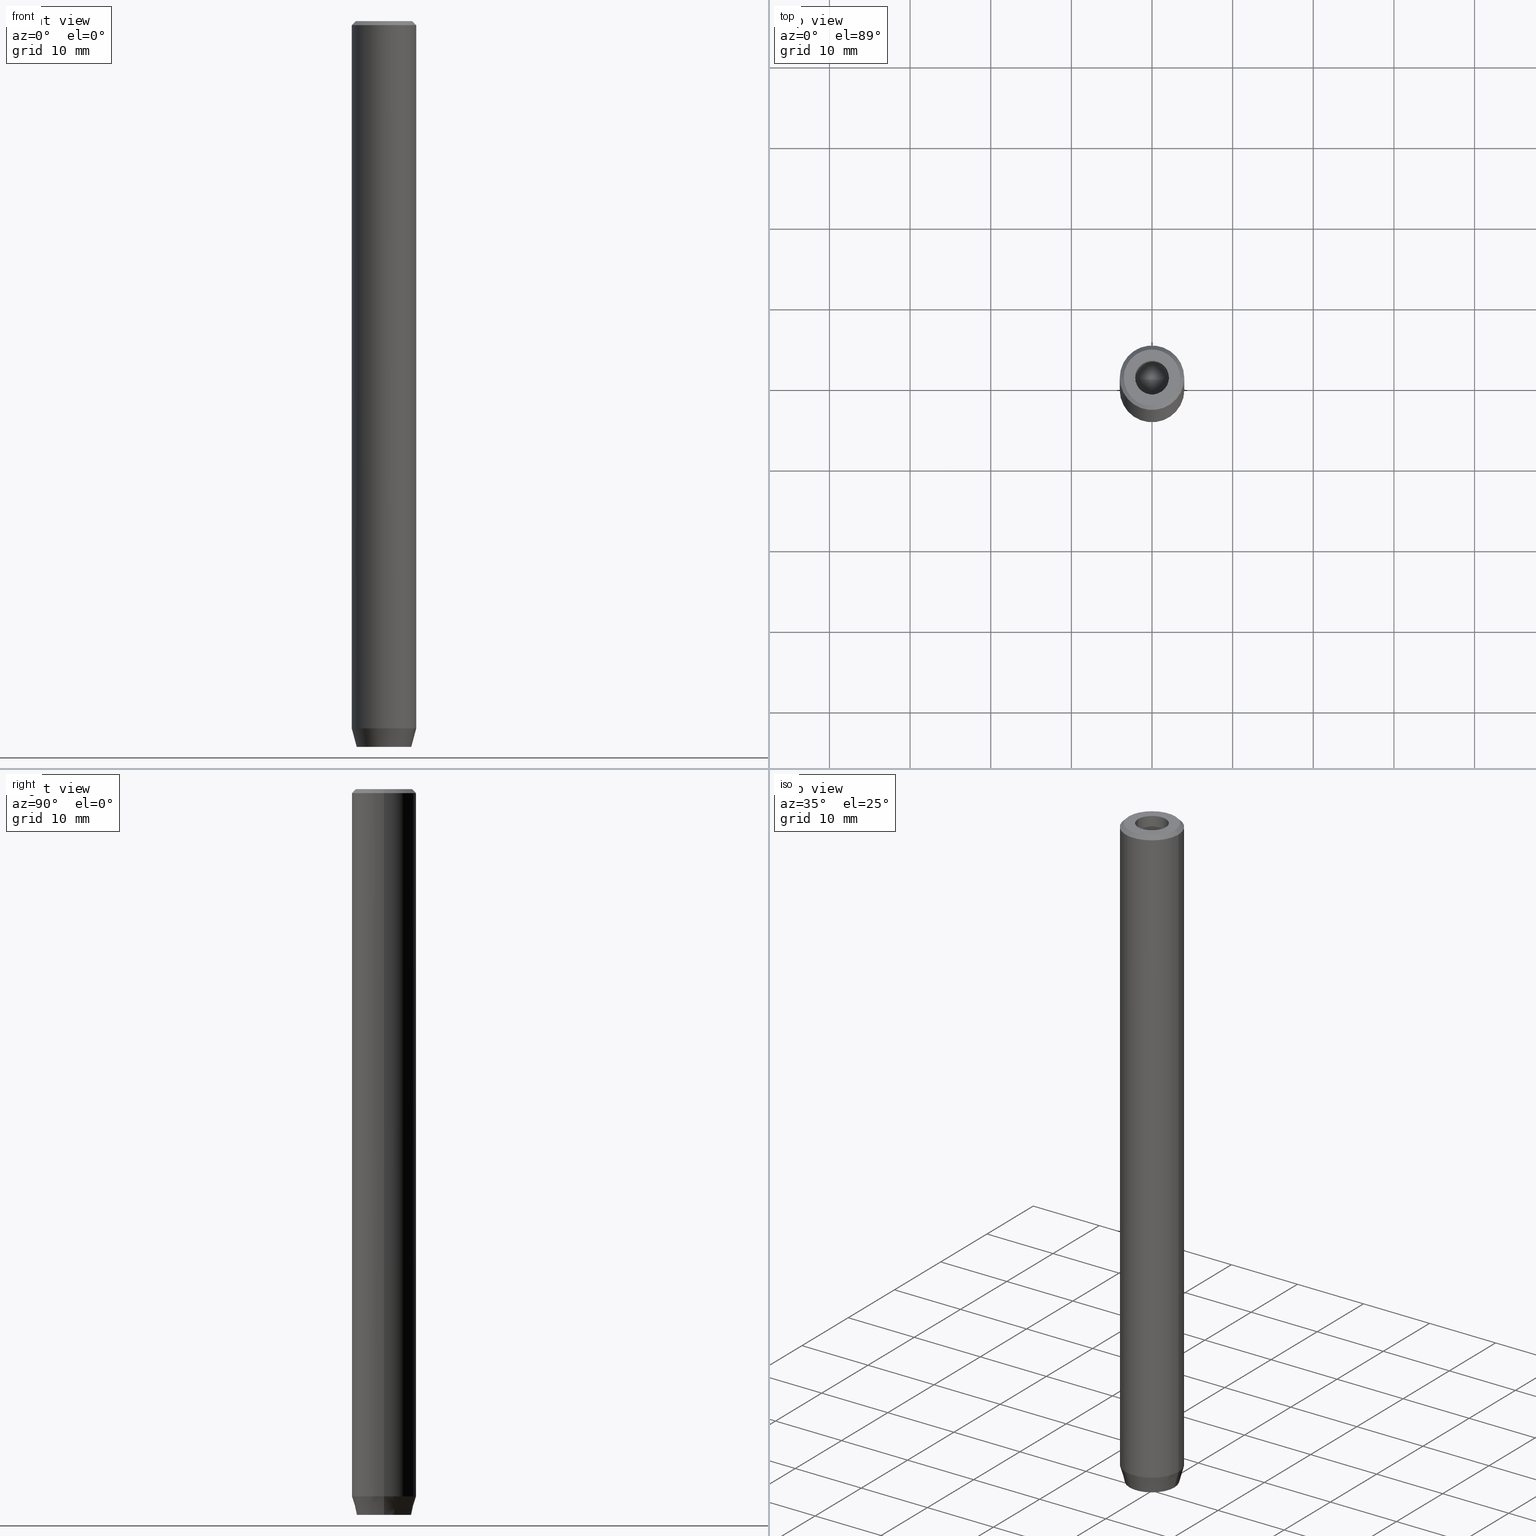
[diagram: canonical four-view strip — front | top / right | iso, engineering-drawing reading convention]
A machine part, canonical four-view strip (front | top / right | iso — engineering-drawing reading convention). The complete STEP part file that produces these views, byte-faithful:
ISO-10303-21;
HEADER;
FILE_DESCRIPTION (( 'STEP AP203' ),
    '1' );
FILE_NAME ('450a.STEP',
    '2024-01-02T23:08:34',
    ( '' ),
    ( '' ),
    'SwSTEP 2.0',
    'SolidWorks 2019',
    '' );
FILE_SCHEMA (( 'CONFIG_CONTROL_DESIGN' ));
ENDSEC;

DATA;
#1 = DIRECTION ( 'NONE',  ( -0.000000000000000000, -0.000000000000000000, 1.000000000000000000 ) ) ;
#2 = DIRECTION ( 'NONE',  ( -0.000000000000000000, -0.000000000000000000, 1.000000000000000000 ) ) ;
#3 = VECTOR ( 'NONE', #38, 1000.000000000000000 ) ;
#4 = EDGE_CURVE ( 'NONE', #305, #62, #400, .T. ) ;
#5 = DIRECTION ( 'NONE',  ( 1.000000000000000000, 0.000000000000000000, 0.000000000000000000 ) ) ;
#6 = LINE ( 'NONE', #286, #94 ) ;
#7 = CARTESIAN_POINT ( 'NONE',  ( -2.099999999999997868, 2.571758278209438999E-16, 0.000000000000000000 ) ) ;
#8 = ORIENTED_EDGE ( 'NONE', *, *, #4, .T. ) ;
#9 = EDGE_CURVE ( 'NONE', #29, #391, #340, .T. ) ;
#10 = CIRCLE ( 'NONE', #161, 4.000000000000000000 ) ;
#11 = CARTESIAN_POINT ( 'NONE',  ( -1.000000000000000222, -1.732050807568877637, -87.20000000000000284 ) ) ;
#12 = DIRECTION ( 'NONE',  ( -1.000000000000000000, 0.000000000000000000, 0.000000000000000000 ) ) ;
#13 = ORIENTED_EDGE ( 'NONE', *, *, #137, .T. ) ;
#14 = VERTEX_POINT ( 'NONE', #252 ) ;
#15 = APPROVAL ( #52, 'NEUR�EN�' ) ;
#16 = CARTESIAN_POINT ( 'NONE',  ( -2.099999999999998757, 2.571758278209439985E-16, -1.990051048614449116E-16 ) ) ;
#17 = ORIENTED_EDGE ( 'NONE', *, *, #27, .T. ) ;
#18 = ORIENTED_EDGE ( 'NONE', *, *, #323, .F. ) ;
#19 = LINE ( 'NONE', #11, #106 ) ;
#20 = CARTESIAN_POINT ( 'NONE',  ( -1.999999999999998668, -1.154700538379252572, -87.20000000000000284 ) ) ;
#21 = EDGE_LOOP ( 'NONE', ( #22, #513, #307, #389 ) ) ;
#22 = ORIENTED_EDGE ( 'NONE', *, *, #559, .F. ) ;
#23 = DATE_TIME_ROLE ( 'creation_date' ) ;
#24 = AXIS2_PLACEMENT_3D ( 'NONE', #134, #2, #85 ) ;
#25 = LOCAL_TIME ( 0, 8, 34.00000000000000000, #192 ) ;
#26 = LINE ( 'NONE', #152, #179 ) ;
#27 = EDGE_CURVE ( 'NONE', #14, #105, #512, .T. ) ;
#28 = ORIENTED_EDGE ( 'NONE', *, *, #583, .T. ) ;
#29 = VERTEX_POINT ( 'NONE', #572 ) ;
#30 = PRODUCT_DEFINITION_SHAPE ( 'NONE', 'NONE',  #507 ) ;
#31 = ORIENTED_EDGE ( 'NONE', *, *, #9, .F. ) ;
#32 = DIRECTION ( 'NONE',  ( 1.000000000000000000, 0.000000000000000000, 0.000000000000000000 ) ) ;
#33 = EDGE_LOOP ( 'NONE', ( #353, #79, #533, #397 ) ) ;
#34 = CC_DESIGN_DATE_AND_TIME_ASSIGNMENT ( #496, #23, ( #507 ) ) ;
#35 = CONICAL_SURFACE ( 'NONE', #318, 2.099999999999996980, 1.029744258676653201 ) ;
#36 = APPROVAL_PERSON_ORGANIZATION ( #348, #282, #534 ) ;
#37 = EDGE_LOOP ( 'NONE', ( #440, #109, #517, #220 ) ) ;
#38 = DIRECTION ( 'NONE',  ( -0.000000000000000000, -0.000000000000000000, -1.000000000000000000 ) ) ;
#39 = EDGE_CURVE ( 'NONE', #122, #66, #262, .T. ) ;
#40 = ORIENTED_EDGE ( 'NONE', *, *, #184, .F. ) ;
#41 = CYLINDRICAL_SURFACE ( 'NONE', #58, 4.000000000000000000 ) ;
#42 = CARTESIAN_POINT ( 'NONE',  ( -4.000000000000000000, 4.898587196589412829E-16, -0.4999999999999970024 ) ) ;
#43 = CC_DESIGN_APPROVAL ( #282, ( #451 ) ) ;
#44 = VERTEX_POINT ( 'NONE', #536 ) ;
#45 = DIRECTION ( 'NONE',  ( 1.000000000000000000, 0.000000000000000000, 0.000000000000000000 ) ) ;
#46 = CALENDAR_DATE ( 2024, 3, 1 ) ;
#47 = CARTESIAN_POINT ( 'NONE',  ( 2.168404344971008868E-16, -2.309401076758503812, -90.00000000000000000 ) ) ;
#48 = EDGE_CURVE ( 'NONE', #399, #531, #370, .T. ) ;
#49 = DIRECTION ( 'NONE',  ( 0.8660254037844385966, 0.5000000000000001110, 0.000000000000000000 ) ) ;
#50 = VECTOR ( 'NONE', #476, 1000.000000000000000 ) ;
#51 = DIRECTION ( 'NONE',  ( 1.000000000000000000, 0.000000000000000000, 0.000000000000000000 ) ) ;
#52 = APPROVAL_STATUS ( 'not_yet_approved' ) ;
#53 = CARTESIAN_POINT ( 'NONE',  ( -1.000000000000000222, -1.732050807568877637, -90.00000000000000000 ) ) ;
#54 = EDGE_CURVE ( 'NONE', #105, #44, #321, .T. ) ;
#55 = PLANE ( 'NONE',  #582 ) ;
#56 = FACE_OUTER_BOUND ( 'NONE', #254, .T. ) ;
#57 = ORIENTED_EDGE ( 'NONE', *, *, #350, .T. ) ;
#58 = AXIS2_PLACEMENT_3D ( 'NONE', #90, #358, #280 ) ;
#59 = CARTESIAN_POINT ( 'NONE',  ( -3.500000000000003109, 0.000000000000000000, 0.000000000000000000 ) ) ;
#60 = ORIENTED_EDGE ( 'NONE', *, *, #228, .T. ) ;
#61 = FACE_BOUND ( 'NONE', #244, .T. ) ;
#62 = VERTEX_POINT ( 'NONE', #275 ) ;
#63 = ADVANCED_FACE ( 'NONE', ( #548 ), #380, .F. ) ;
#64 = LINE ( 'NONE', #295, #371 ) ;
#65 = DIRECTION ( 'NONE',  ( 0.000000000000000000, 0.000000000000000000, -1.000000000000000000 ) ) ;
#66 = VERTEX_POINT ( 'NONE', #413 ) ;
#67 = LINE ( 'NONE', #570, #264 ) ;
#68 = VECTOR ( 'NONE', #313, 1000.000000000000000 ) ;
#69 = CARTESIAN_POINT ( 'NONE',  ( 0.000000000000000000, 0.000000000000000000, -90.00000000000000000 ) ) ;
#70 = LINE ( 'NONE', #258, #546 ) ;
#71 = ADVANCED_FACE ( 'NONE', ( #195 ), #367, .F. ) ;
#72 = ORIENTED_EDGE ( 'NONE', *, *, #120, .F. ) ;
#73 = DIRECTION ( 'NONE',  ( -0.000000000000000000, -0.000000000000000000, -1.000000000000000000 ) ) ;
#74 = ORIENTED_EDGE ( 'NONE', *, *, #243, .T. ) ;
#75 = DIRECTION ( 'NONE',  ( 0.8660254037844385966, -0.4999999999999999445, 0.000000000000000000 ) ) ;
#76 = CIRCLE ( 'NONE', #310, 3.500000000000003109 ) ;
#77 = CARTESIAN_POINT ( 'NONE',  ( 0.000000000000000000, 0.000000000000000000, 0.000000000000000000 ) ) ;
#78 = APPROVAL ( #300, 'NEUR�EN�' ) ;
#79 = ORIENTED_EDGE ( 'NONE', *, *, #414, .F. ) ;
#80 = PERSON_AND_ORGANIZATION ( #141, #226 ) ;
#81 = LINE ( 'NONE', #193, #419 ) ;
#82 = LINE ( 'NONE', #271, #408 ) ;
#83 = EDGE_LOOP ( 'NONE', ( #183, #115, #111, #74 ) ) ;
#84 = CARTESIAN_POINT ( 'NONE',  ( 1.000000000000000444, 1.732050807568877637, -87.20000000000000284 ) ) ;
#85 = DIRECTION ( 'NONE',  ( 1.000000000000000000, 0.000000000000000000, 0.000000000000000000 ) ) ;
#86 = VECTOR ( 'NONE', #190, 1000.000000000000000 ) ;
#87 = VECTOR ( 'NONE', #547, 1000.000000000000000 ) ;
#88 =( NAMED_UNIT ( * ) PLANE_ANGLE_UNIT ( ) SI_UNIT ( $, .RADIAN. ) );
#89 = EDGE_CURVE ( 'NONE', #62, #399, #82, .T. ) ;
#90 = CARTESIAN_POINT ( 'NONE',  ( 0.000000000000000000, 0.000000000000000000, 0.000000000000000000 ) ) ;
#91 = VERTEX_POINT ( 'NONE', #42 ) ;
#92 = PRODUCT_RELATED_PRODUCT_CATEGORY ( 'detail', '', ( #124 ) ) ;
#93 = PLANE ( 'NONE',  #575 ) ;
#94 = VECTOR ( 'NONE', #339, 1000.000000000000000 ) ;
#95 = LOCAL_TIME ( 0, 8, 34.00000000000000000, #125 ) ;
#96 = ADVANCED_FACE ( 'NONE', ( #227 ), #35, .F. ) ;
#97 = DIRECTION ( 'NONE',  ( 0.000000000000000000, 0.000000000000000000, -1.000000000000000000 ) ) ;
#98 = DIRECTION ( 'NONE',  ( -0.8660254037844388186, -0.4999999999999996114, 0.000000000000000000 ) ) ;
#99 = CARTESIAN_POINT ( 'NONE',  ( 2.099999999999996980, 0.000000000000000000, -12.50000000000000000 ) ) ;
#100 = LINE ( 'NONE', #427, #50 ) ;
#101 = DIRECTION ( 'NONE',  ( 1.000000000000000000, 0.000000000000000000, 0.000000000000000000 ) ) ;
#102 = ORIENTED_EDGE ( 'NONE', *, *, #243, .F. ) ;
#103 = DIRECTION ( 'NONE',  ( -0.000000000000000000, -0.000000000000000000, -1.000000000000000000 ) ) ;
#104 = CARTESIAN_POINT ( 'NONE',  ( -3.500000000000003109, 0.000000000000000000, 0.000000000000000000 ) ) ;
#105 = VERTEX_POINT ( 'NONE', #543 ) ;
#106 = VECTOR ( 'NONE', #374, 999.9999999999998863 ) ;
#107 = CARTESIAN_POINT ( 'NONE',  ( -1.999999999999997780, 1.154700538379253238, -90.00000000000000000 ) ) ;
#108 = CARTESIAN_POINT ( 'NONE',  ( -1.000000000000000444, 1.732050807568877637, -87.20000000000000284 ) ) ;
#109 = ORIENTED_EDGE ( 'NONE', *, *, #9, .T. ) ;
#110 = ADVANCED_FACE ( 'NONE', ( #566 ), #284, .T. ) ;
#111 = ORIENTED_EDGE ( 'NONE', *, *, #493, .F. ) ;
#112 = LINE ( 'NONE', #7, #352 ) ;
#113 = DIRECTION ( 'NONE',  ( -0.2588190451025210725, 3.169619151431769255E-17, 0.9659258262890680902 ) ) ;
#114 = ORIENTED_EDGE ( 'NONE', *, *, #568, .T. ) ;
#115 = ORIENTED_EDGE ( 'NONE', *, *, #516, .F. ) ;
#116 = PERSON_AND_ORGANIZATION_ROLE ( 'design_owner' ) ;
#117 = EDGE_LOOP ( 'NONE', ( #232, #378, #342, #478 ) ) ;
#118 = AXIS2_PLACEMENT_3D ( 'NONE', #554, #327, #148 ) ;
#119 = AXIS2_PLACEMENT_3D ( 'NONE', #200, #245, #423 ) ;
#120 = EDGE_CURVE ( 'NONE', #489, #297, #464, .T. ) ;
#121 = FACE_OUTER_BOUND ( 'NONE', #202, .T. ) ;
#122 = VERTEX_POINT ( 'NONE', #563 ) ;
#123 = CARTESIAN_POINT ( 'NONE',  ( 0.000000000000000000, 0.000000000000000000, -0.4999999999999970024 ) ) ;
#124 = PRODUCT ( '450a', '450a', '', ( #178 ) ) ;
#125 = COORDINATED_UNIVERSAL_TIME_OFFSET ( 1, 0, .AHEAD. ) ;
#126 = AXIS2_PLACEMENT_3D ( 'NONE', #525, #65, #571 ) ;
#127 = DIRECTION ( 'NONE',  ( -0.000000000000000000, -0.000000000000000000, 1.000000000000000000 ) ) ;
#128 = VECTOR ( 'NONE', #205, 1000.000000000000114 ) ;
#129 = PLANE ( 'NONE',  #162 ) ;
#130 = EDGE_CURVE ( 'NONE', #122, #198, #26, .T. ) ;
#131 = FACE_OUTER_BOUND ( 'NONE', #241, .T. ) ;
#132 = ORIENTED_EDGE ( 'NONE', *, *, #270, .F. ) ;
#133 = CALENDAR_DATE ( 2024, 3, 1 ) ;
#134 = CARTESIAN_POINT ( 'NONE',  ( 0.000000000000000000, 0.000000000000000000, 0.000000000000000000 ) ) ;
#135 = APPLICATION_PROTOCOL_DEFINITION ( 'international standard', 'config_control_design', 1994, #218 ) ;
#136 = CYLINDRICAL_SURFACE ( 'NONE', #24, 2.099999999999997868 ) ;
#137 = EDGE_CURVE ( 'NONE', #62, #305, #450, .T. ) ;
#138 = CARTESIAN_POINT ( 'NONE',  ( 2.000000000000000888, 1.154700538379251462, -87.20000000000000284 ) ) ;
#139 = AXIS2_PLACEMENT_3D ( 'NONE', #573, #486, #75 ) ;
#140 = CC_DESIGN_APPROVAL ( #78, ( #507 ) ) ;
#141 = PERSON ( 'NEUR�EN�', 'NEUR�EN�', 'NEUR�EN�', ('NEUR�EN�'), ('NEUR�EN�'), ('NEUR�EN�') ) ;
#142 = CARTESIAN_POINT ( 'NONE',  ( 2.000000000000000888, 0.000000000000000000, -90.00000000000000000 ) ) ;
#143 = CARTESIAN_POINT ( 'NONE',  ( 0.000000000000000000, 0.000000000000000000, -12.50000000000000000 ) ) ;
#144 = ORIENTED_EDGE ( 'NONE', *, *, #219, .T. ) ;
#145 = LINE ( 'NONE', #452, #565 ) ;
#146 = DATE_AND_TIME ( #365, #337 ) ;
#147 = EDGE_CURVE ( 'NONE', #14, #297, #100, .T. ) ;
#148 = DIRECTION ( 'NONE',  ( -5.633679745264339711E-16, -1.000000000000000000, 0.000000000000000000 ) ) ;
#149 = VERTEX_POINT ( 'NONE', #463 ) ;
#150 = CIRCLE ( 'NONE', #394, 3.383716857408417766 ) ;
#151 = DIRECTION ( 'NONE',  ( 1.000000000000000000, 0.000000000000000000, 0.000000000000000000 ) ) ;
#152 = CARTESIAN_POINT ( 'NONE',  ( -4.000000000000000000, 4.898587196589412829E-16, -87.70000000000000284 ) ) ;
#153 = ORIENTED_EDGE ( 'NONE', *, *, #203, .T. ) ;
#154 = APPROVAL_DATE_TIME ( #285, #15 ) ;
#155 = LINE ( 'NONE', #509, #401 ) ;
#156 = ORIENTED_EDGE ( 'NONE', *, *, #458, .T. ) ;
#157 = DIRECTION ( 'NONE',  ( 1.000000000000000000, 0.000000000000000000, 0.000000000000000000 ) ) ;
#158 = DIRECTION ( 'NONE',  ( 5.633679745264339711E-16, 1.000000000000000000, 0.000000000000000000 ) ) ;
#159 = CC_DESIGN_PERSON_AND_ORGANIZATION_ASSIGNMENT ( #430, #116, ( #124 ) ) ;
#160 = VERTEX_POINT ( 'NONE', #59 ) ;
#161 = AXIS2_PLACEMENT_3D ( 'NONE', #123, #308, #32 ) ;
#162 = AXIS2_PLACEMENT_3D ( 'NONE', #84, #386, #272 ) ;
#163 = DIRECTION ( 'NONE',  ( -0.8660254037844387076, 0.5000000000000001110, 0.000000000000000000 ) ) ;
#164 = CARTESIAN_POINT ( 'NONE',  ( 0.000000000000000000, 0.000000000000000000, -12.50000000000000000 ) ) ;
#165 = ORIENTED_EDGE ( 'NONE', *, *, #279, .F. ) ;
#166 = CARTESIAN_POINT ( 'NONE',  ( 0.000000000000000000, 0.000000000000000000, 0.000000000000000000 ) ) ;
#167 = ORIENTED_EDGE ( 'NONE', *, *, #516, .T. ) ;
#168 = ORIENTED_EDGE ( 'NONE', *, *, #328, .F. ) ;
#169 = ADVANCED_FACE ( 'NONE', ( #56 ), #561, .F. ) ;
#170 = ORIENTED_EDGE ( 'NONE', *, *, #48, .F. ) ;
#171 = VECTOR ( 'NONE', #372, 1000.000000000000000 ) ;
#172 = EDGE_LOOP ( 'NONE', ( #523, #249, #564, #442 ) ) ;
#173 = DIRECTION ( 'NONE',  ( 1.000000000000000000, 0.000000000000000000, 0.000000000000000000 ) ) ;
#174 = ORIENTED_EDGE ( 'NONE', *, *, #306, .F. ) ;
#175 = APPROVAL_DATE_TIME ( #181, #78 ) ;
#176 = PLANE ( 'NONE',  #139 ) ;
#177 = ADVANCED_FACE ( 'NONE', ( #387 ), #439, .T. ) ;
#178 = MECHANICAL_CONTEXT ( 'NONE', #218, 'mechanical' ) ;
#179 = VECTOR ( 'NONE', #113, 1000.000000000000114 ) ;
#180 = FACE_OUTER_BOUND ( 'NONE', #567, .T. ) ;
#181 = DATE_AND_TIME ( #215, #556 ) ;
#182 = CARTESIAN_POINT ( 'NONE',  ( 2.168404344971008868E-16, -2.309401076758503812, -87.20000000000000284 ) ) ;
#183 = ORIENTED_EDGE ( 'NONE', *, *, #213, .T. ) ;
#184 = EDGE_CURVE ( 'NONE', #149, #421, #155, .T. ) ;
#185 = DIRECTION ( 'NONE',  ( 1.000000000000000000, 0.000000000000000000, 0.000000000000000000 ) ) ;
#186 = CARTESIAN_POINT ( 'NONE',  ( 0.000000000000000000, 0.000000000000000000, -1.990051048614449116E-16 ) ) ;
#187 = SHAPE_DEFINITION_REPRESENTATION ( #30, #277 ) ;
#188 = CARTESIAN_POINT ( 'NONE',  ( 0.000000000000000000, 0.000000000000000000, 0.000000000000000000 ) ) ;
#189 = AXIS2_PLACEMENT_3D ( 'NONE', #186, #363, #406 ) ;
#190 = DIRECTION ( 'NONE',  ( -0.000000000000000000, -0.000000000000000000, -1.000000000000000000 ) ) ;
#191 = CONICAL_SURFACE ( 'NONE', #409, 4.000000000000000000, 0.2617993877991497964 ) ;
#192 = COORDINATED_UNIVERSAL_TIME_OFFSET ( 1, 0, .AHEAD. ) ;
#193 = CARTESIAN_POINT ( 'NONE',  ( -4.000000000000000000, 4.898587196589412829E-16, 0.000000000000000000 ) ) ;
#194 = DIRECTION ( 'NONE',  ( -0.000000000000000000, -0.000000000000000000, 1.000000000000000000 ) ) ;
#195 = FACE_OUTER_BOUND ( 'NONE', #83, .T. ) ;
#196 = APPROVAL_ROLE ( '' ) ;
#197 = LINE ( 'NONE', #99, #68 ) ;
#198 = VERTEX_POINT ( 'NONE', #331 ) ;
#199 = CIRCLE ( 'NONE', #457, 3.500000000000003109 ) ;
#200 = CARTESIAN_POINT ( 'NONE',  ( 0.000000000000000000, 0.000000000000000000, 0.000000000000000000 ) ) ;
#201 = DIRECTION ( 'NONE',  ( 1.000000000000000000, 0.000000000000000000, 0.000000000000000000 ) ) ;
#202 = EDGE_LOOP ( 'NONE', ( #428, #102, #498, #470 ) ) ;
#203 = EDGE_CURVE ( 'NONE', #160, #91, #377, .T. ) ;
#204 = FACE_OUTER_BOUND ( 'NONE', #312, .T. ) ;
#205 = DIRECTION ( 'NONE',  ( -0.7071067811865474617, 0.000000000000000000, -0.7071067811865474617 ) ) ;
#206 = DIRECTION ( 'NONE',  ( -1.000000000000000000, 0.000000000000000000, 0.000000000000000000 ) ) ;
#207 = ORIENTED_EDGE ( 'NONE', *, *, #219, .F. ) ;
#208 = CIRCLE ( 'NONE', #459, 4.000000000000000000 ) ;
#209 = CC_DESIGN_SECURITY_CLASSIFICATION ( #293, ( #451 ) ) ;
#210 = APPROVAL_STATUS ( 'not_yet_approved' ) ;
#211 = DIRECTION ( 'NONE',  ( -0.8660254037844385966, -0.5000000000000001110, 0.000000000000000000 ) ) ;
#212 = VERTEX_POINT ( 'NONE', #291 ) ;
#213 = EDGE_CURVE ( 'NONE', #329, #489, #469, .T. ) ;
#214 = VERTEX_POINT ( 'NONE', #20 ) ;
#215 = CALENDAR_DATE ( 2024, 3, 1 ) ;
#216 = LINE ( 'NONE', #488, #326 ) ;
#217 = VECTOR ( 'NONE', #324, 1000.000000000000000 ) ;
#218 = APPLICATION_CONTEXT ( 'configuration controlled 3d designs of mechanical parts and assemblies' ) ;
#219 = EDGE_CURVE ( 'NONE', #66, #122, #150, .T. ) ;
#220 = ORIENTED_EDGE ( 'NONE', *, *, #203, .F. ) ;
#221 = PERSON_AND_ORGANIZATION_ROLE ( 'creator' ) ;
#222 = VERTEX_POINT ( 'NONE', #520 ) ;
#223 = AXIS2_PLACEMENT_3D ( 'NONE', #69, #562, #101 ) ;
#224 = CIRCLE ( 'NONE', #555, 4.000000000000000000 ) ;
#225 = LINE ( 'NONE', #410, #87 ) ;
#226 = ORGANIZATION ( 'NEUR�EN�', 'NEUR�EN�', '' ) ;
#227 = FACE_OUTER_BOUND ( 'NONE', #299, .T. ) ;
#228 = EDGE_CURVE ( 'NONE', #391, #91, #208, .T. ) ;
#229 = ORIENTED_EDGE ( 'NONE', *, *, #120, .T. ) ;
#230 = CARTESIAN_POINT ( 'NONE',  ( 0.000000000000000000, 0.000000000000000000, 0.000000000000000000 ) ) ;
#231 = CARTESIAN_POINT ( 'NONE',  ( -1.999999999999998668, -1.154700538379252572, -90.00000000000000000 ) ) ;
#232 = ORIENTED_EDGE ( 'NONE', *, *, #4, .F. ) ;
#233 = LINE ( 'NONE', #182, #242 ) ;
#234 = AXIS2_PLACEMENT_3D ( 'NONE', #164, #416, #201 ) ;
#235 = DIRECTION ( 'NONE',  ( -0.000000000000000000, -0.000000000000000000, 1.000000000000000000 ) ) ;
#236 = AXIS2_PLACEMENT_3D ( 'NONE', #248, #194, #151 ) ;
#237 = ADVANCED_FACE ( 'NONE', ( #482 ), #257, .F. ) ;
#238 = CARTESIAN_POINT ( 'NONE',  ( 0.000000000000000000, 0.000000000000000000, 0.000000000000000000 ) ) ;
#239 = FACE_OUTER_BOUND ( 'NONE', #117, .T. ) ;
#240 = DIRECTION ( 'NONE',  ( -0.5000000000000001110, 0.8660254037844385966, 0.000000000000000000 ) ) ;
#241 = EDGE_LOOP ( 'NONE', ( #432, #289, #294, #385 ) ) ;
#242 = VECTOR ( 'NONE', #366, 1000.000000000000000 ) ;
#243 = EDGE_CURVE ( 'NONE', #214, #329, #434, .T. ) ;
#244 = EDGE_LOOP ( 'NONE', ( #170, #174 ) ) ;
#245 = DIRECTION ( 'NONE',  ( -0.000000000000000000, -0.000000000000000000, 1.000000000000000000 ) ) ;
#246 = CARTESIAN_POINT ( 'NONE',  ( -1.999999999999998224, 1.126735949052866956E-15, -90.00000000000000000 ) ) ;
#247 = ORIENTED_EDGE ( 'NONE', *, *, #228, .F. ) ;
#248 = CARTESIAN_POINT ( 'NONE',  ( 0.000000000000000000, 0.000000000000000000, 0.000000000000000000 ) ) ;
#249 = ORIENTED_EDGE ( 'NONE', *, *, #39, .T. ) ;
#250 = DIRECTION ( 'NONE',  ( 0.000000000000000000, -0.000000000000000000, 1.000000000000000000 ) ) ;
#251 = EDGE_CURVE ( 'NONE', #91, #391, #10, .T. ) ;
#252 = CARTESIAN_POINT ( 'NONE',  ( 0.000000000000000000, 2.309401076758503812, -87.20000000000000284 ) ) ;
#253 = CIRCLE ( 'NONE', #336, 2.099999999999998757 ) ;
#254 = EDGE_LOOP ( 'NONE', ( #229, #383, #484, #167 ) ) ;
#255 =( GEOMETRIC_REPRESENTATION_CONTEXT ( 3 ) GLOBAL_UNCERTAINTY_ASSIGNED_CONTEXT ( ( #569 ) ) GLOBAL_UNIT_ASSIGNED_CONTEXT ( ( #449, #88, #580 ) ) REPRESENTATION_CONTEXT ( 'NONE', 'WORKASPACE' ) );
#256 = APPLICATION_PROTOCOL_DEFINITION ( 'international standard', 'config_control_design', 1994, #346 ) ;
#257 = PLANE ( 'NONE',  #302 ) ;
#258 = CARTESIAN_POINT ( 'NONE',  ( -2.099999999999996980, 2.571758278209438013E-16, -12.50000000000000000 ) ) ;
#259 = ORIENTED_EDGE ( 'NONE', *, *, #368, .F. ) ;
#260 = CARTESIAN_POINT ( 'NONE',  ( -2.099999999999996980, 2.571758278209438013E-16, -12.50000000000000000 ) ) ;
#261 = ADVANCED_FACE ( 'NONE', ( #121 ), #176, .F. ) ;
#262 = CIRCLE ( 'NONE', #223, 3.383716857408417766 ) ;
#263 = VECTOR ( 'NONE', #355, 1000.000000000000114 ) ;
#264 = VECTOR ( 'NONE', #357, 1000.000000000000000 ) ;
#265 = LINE ( 'NONE', #436, #273 ) ;
#266 = ORIENTED_EDGE ( 'NONE', *, *, #130, .T. ) ;
#267 = APPROVAL_DATE_TIME ( #492, #282 ) ;
#268 = ORIENTED_EDGE ( 'NONE', *, *, #39, .F. ) ;
#269 = APPROVAL_ROLE ( '' ) ;
#270 = EDGE_CURVE ( 'NONE', #222, #305, #70, .T. ) ;
#271 = CARTESIAN_POINT ( 'NONE',  ( 2.099999999999997868, 0.000000000000000000, 0.000000000000000000 ) ) ;
#272 = DIRECTION ( 'NONE',  ( -0.8660254037844385966, 0.5000000000000001110, 0.000000000000000000 ) ) ;
#273 = VECTOR ( 'NONE', #441, 1000.000000000000114 ) ;
#274 = DIRECTION ( 'NONE',  ( 1.000000000000000000, 0.000000000000000000, 0.000000000000000000 ) ) ;
#275 = CARTESIAN_POINT ( 'NONE',  ( 2.099999999999996980, 0.000000000000000000, -12.50000000000000000 ) ) ;
#276 = CARTESIAN_POINT ( 'NONE',  ( 4.000000000000000000, 0.000000000000000000, -0.4999999999999970024 ) ) ;
#277 = ADVANCED_BREP_SHAPE_REPRESENTATION ( '450a', ( #417, #320 ), #255 ) ;
#278 = LINE ( 'NONE', #454, #483 ) ;
#279 = EDGE_CURVE ( 'NONE', #66, #344, #265, .T. ) ;
#280 = DIRECTION ( 'NONE',  ( 1.000000000000000000, 0.000000000000000000, 0.000000000000000000 ) ) ;
#281 = AXIS2_PLACEMENT_3D ( 'NONE', #166, #420, #12 ) ;
#282 = APPROVAL ( #210, 'NEUR�EN�' ) ;
#283 = DIRECTION ( 'NONE',  ( -1.000000000000000000, 0.000000000000000000, -0.000000000000000000 ) ) ;
#284 = PLANE ( 'NONE',  #126 ) ;
#285 = DATE_AND_TIME ( #46, #25 ) ;
#286 = CARTESIAN_POINT ( 'NONE',  ( -1.999999999999998224, 1.126735949052866956E-15, -87.20000000000000284 ) ) ;
#287 = EDGE_CURVE ( 'NONE', #212, #149, #216, .T. ) ;
#288 = ORIENTED_EDGE ( 'NONE', *, *, #27, .F. ) ;
#289 = ORIENTED_EDGE ( 'NONE', *, *, #287, .F. ) ;
#290 = DIRECTION ( 'NONE',  ( 0.000000000000000000, 0.000000000000000000, -1.000000000000000000 ) ) ;
#291 = CARTESIAN_POINT ( 'NONE',  ( 2.000000000000000888, -1.154700538379252572, -87.20000000000000284 ) ) ;
#292 = VECTOR ( 'NONE', #158, 1000.000000000000000 ) ;
#293 = SECURITY_CLASSIFICATION ( '', '', #354 ) ;
#294 = ORIENTED_EDGE ( 'NONE', *, *, #583, .F. ) ;
#295 = CARTESIAN_POINT ( 'NONE',  ( -1.999999999999997780, 1.154700538379253238, -87.20000000000000284 ) ) ;
#296 = DIRECTION ( 'NONE',  ( -0.000000000000000000, -0.000000000000000000, 1.000000000000000000 ) ) ;
#297 = VERTEX_POINT ( 'NONE', #349 ) ;
#298 = DIRECTION ( 'NONE',  ( -0.000000000000000000, -0.000000000000000000, 1.000000000000000000 ) ) ;
#299 = EDGE_LOOP ( 'NONE', ( #132, #114, #13 ) ) ;
#300 = APPROVAL_STATUS ( 'not_yet_approved' ) ;
#301 = EDGE_LOOP ( 'NONE', ( #207, #268 ) ) ;
#302 = AXIS2_PLACEMENT_3D ( 'NONE', #530, #304, #393 ) ;
#303 = LOCAL_TIME ( 0, 8, 34.00000000000000000, #502 ) ;
#304 = DIRECTION ( 'NONE',  ( 0.4999999999999996669, -0.8660254037844388186, 0.000000000000000000 ) ) ;
#305 = VERTEX_POINT ( 'NONE', #260 ) ;
#306 = EDGE_CURVE ( 'NONE', #531, #399, #253, .T. ) ;
#307 = ORIENTED_EDGE ( 'NONE', *, *, #89, .T. ) ;
#308 = DIRECTION ( 'NONE',  ( 0.000000000000000000, 0.000000000000000000, -1.000000000000000000 ) ) ;
#309 = CALENDAR_DATE ( 2024, 3, 1 ) ;
#310 = AXIS2_PLACEMENT_3D ( 'NONE', #188, #456, #45 ) ;
#311 = CC_DESIGN_APPROVAL ( #15, ( #293 ) ) ;
#312 = EDGE_LOOP ( 'NONE', ( #57, #422 ) ) ;
#313 = DIRECTION ( 'NONE',  ( 0.8571673007021116675, 0.000000000000000000, 0.5150380749100552658 ) ) ;
#314 = EDGE_CURVE ( 'NONE', #212, #473, #403, .T. ) ;
#315 = CARTESIAN_POINT ( 'NONE',  ( 2.000000000000000888, 0.000000000000000000, -87.20000000000000284 ) ) ;
#316 = PERSON_AND_ORGANIZATION_ROLE ( 'classification_officer' ) ;
#317 = DIRECTION ( 'NONE',  ( -0.000000000000000000, -0.000000000000000000, 1.000000000000000000 ) ) ;
#318 = AXIS2_PLACEMENT_3D ( 'NONE', #404, #586, #356 ) ;
#319 = FACE_OUTER_BOUND ( 'NONE', #21, .T. ) ;
#320 = AXIS2_PLACEMENT_3D ( 'NONE', #77, #539, #479 ) ;
#321 = LINE ( 'NONE', #138, #86 ) ;
#322 = CARTESIAN_POINT ( 'NONE',  ( 4.000000000000000000, 0.000000000000000000, -87.70000000000000284 ) ) ;
#323 = EDGE_CURVE ( 'NONE', #198, #91, #81, .T. ) ;
#324 = DIRECTION ( 'NONE',  ( 0.000000000000000000, -1.000000000000000000, 0.000000000000000000 ) ) ;
#325 = CC_DESIGN_DATE_AND_TIME_ASSIGNMENT ( #146, #552, ( #293 ) ) ;
#326 = VECTOR ( 'NONE', #73, 1000.000000000000000 ) ;
#327 = DIRECTION ( 'NONE',  ( -1.000000000000000000, 5.633679745264339711E-16, 0.000000000000000000 ) ) ;
#328 = EDGE_CURVE ( 'NONE', #344, #391, #145, .T. ) ;
#329 = VERTEX_POINT ( 'NONE', #231 ) ;
#330 = CYLINDRICAL_SURFACE ( 'NONE', #119, 2.099999999999997868 ) ;
#331 = CARTESIAN_POINT ( 'NONE',  ( -4.000000000000000000, 4.898587196589412829E-16, -87.70000000000000284 ) ) ;
#332 = EDGE_LOOP ( 'NONE', ( #156, #574, #465, #168 ) ) ;
#333 = ORIENTED_EDGE ( 'NONE', *, *, #361, .F. ) ;
#334 = CARTESIAN_POINT ( 'NONE',  ( 0.000000000000000000, 0.000000000000000000, -87.70000000000000284 ) ) ;
#335 = DIRECTION ( 'NONE',  ( 1.000000000000000000, 0.000000000000000000, 0.000000000000000000 ) ) ;
#336 = AXIS2_PLACEMENT_3D ( 'NONE', #535, #127, #274 ) ;
#337 = LOCAL_TIME ( 0, 8, 34.00000000000000000, #549 ) ;
#338 = ORIENTED_EDGE ( 'NONE', *, *, #493, .T. ) ;
#339 = DIRECTION ( 'NONE',  ( 5.633679745264339711E-16, 1.000000000000000000, 0.000000000000000000 ) ) ;
#340 = LINE ( 'NONE', #526, #438 ) ;
#341 = ADVANCED_FACE ( 'NONE', ( #319 ), #136, .F. ) ;
#342 = ORIENTED_EDGE ( 'NONE', *, *, #306, .T. ) ;
#343 = DIRECTION ( 'NONE',  ( 0.8660254037844385966, -0.5000000000000001110, 0.000000000000000000 ) ) ;
#344 = VERTEX_POINT ( 'NONE', #322 ) ;
#345 = ORIENTED_EDGE ( 'NONE', *, *, #54, .F. ) ;
#346 = APPLICATION_CONTEXT ( 'configuration controlled 3d designs of mechanical parts and assemblies' ) ;
#347 = EDGE_CURVE ( 'NONE', #29, #160, #76, .T. ) ;
#348 = PERSON_AND_ORGANIZATION ( #141, #226 ) ;
#349 = CARTESIAN_POINT ( 'NONE',  ( 0.000000000000000000, 2.309401076758503812, -90.00000000000000000 ) ) ;
#350 = EDGE_CURVE ( 'NONE', #160, #29, #199, .T. ) ;
#351 = PERSON_AND_ORGANIZATION ( #141, #226 ) ;
#352 = VECTOR ( 'NONE', #510, 1000.000000000000000 ) ;
#353 = ORIENTED_EDGE ( 'NONE', *, *, #184, .T. ) ;
#354 = SECURITY_CLASSIFICATION_LEVEL ( 'unclassified' ) ;
#355 = DIRECTION ( 'NONE',  ( -0.8660254037844388186, -0.4999999999999996114, 0.000000000000000000 ) ) ;
#356 = DIRECTION ( 'NONE',  ( 1.000000000000000000, 0.000000000000000000, 0.000000000000000000 ) ) ;
#357 = DIRECTION ( 'NONE',  ( 0.000000000000000000, -1.000000000000000000, 0.000000000000000000 ) ) ;
#358 = DIRECTION ( 'NONE',  ( -0.000000000000000000, -0.000000000000000000, 1.000000000000000000 ) ) ;
#359 = CLOSED_SHELL ( 'NONE', ( #471, #63, #177, #501, #532, #528, #443, #392, #381, #541, #169, #71, #261, #237, #425, #577, #110, #96, #341 ) ) ;
#360 = AXIS2_PLACEMENT_3D ( 'NONE', #446, #500, #505 ) ;
#361 = EDGE_CURVE ( 'NONE', #297, #44, #225, .T. ) ;
#362 = VECTOR ( 'NONE', #163, 999.9999999999998863 ) ;
#363 = DIRECTION ( 'NONE',  ( -0.000000000000000000, -0.000000000000000000, 1.000000000000000000 ) ) ;
#364 = EDGE_LOOP ( 'NONE', ( #491, #17, #28, #373, #485, #338 ) ) ;
#365 = CALENDAR_DATE ( 2024, 3, 1 ) ;
#366 = DIRECTION ( 'NONE',  ( -0.000000000000000000, -0.000000000000000000, -1.000000000000000000 ) ) ;
#367 = PLANE ( 'NONE',  #118 ) ;
#368 = EDGE_CURVE ( 'NONE', #44, #149, #550, .T. ) ;
#369 = CYLINDRICAL_SURFACE ( 'NONE', #236, 4.000000000000000000 ) ;
#370 = CIRCLE ( 'NONE', #189, 2.099999999999998757 ) ;
#371 = VECTOR ( 'NONE', #103, 1000.000000000000000 ) ;
#372 = DIRECTION ( 'NONE',  ( 0.8660254037844385966, 0.5000000000000001110, 0.000000000000000000 ) ) ;
#373 = ORIENTED_EDGE ( 'NONE', *, *, #314, .T. ) ;
#374 = DIRECTION ( 'NONE',  ( -0.8660254037844387076, 0.5000000000000001110, 0.000000000000000000 ) ) ;
#375 = EDGE_LOOP ( 'NONE', ( #31, #576, #153, #247 ) ) ;
#376 = CARTESIAN_POINT ( 'NONE',  ( 0.000000000000000000, 0.000000000000000000, 0.000000000000000000 ) ) ;
#377 = LINE ( 'NONE', #104, #128 ) ;
#378 = ORIENTED_EDGE ( 'NONE', *, *, #559, .T. ) ;
#379 = LINE ( 'NONE', #53, #362 ) ;
#380 = CONICAL_SURFACE ( 'NONE', #382, 2.099999999999996980, 1.029744258676653201 ) ;
#381 = ADVANCED_FACE ( 'NONE', ( #506 ), #519, .T. ) ;
#382 = AXIS2_PLACEMENT_3D ( 'NONE', #143, #235, #5 ) ;
#383 = ORIENTED_EDGE ( 'NONE', *, *, #147, .F. ) ;
#384 = AXIS2_PLACEMENT_3D ( 'NONE', #545, #460, #51 ) ;
#385 = ORIENTED_EDGE ( 'NONE', *, *, #54, .T. ) ;
#386 = DIRECTION ( 'NONE',  ( 0.5000000000000001110, 0.8660254037844385966, -0.000000000000000000 ) ) ;
#387 = FACE_OUTER_BOUND ( 'NONE', #37, .T. ) ;
#388 = CARTESIAN_POINT ( 'NONE',  ( 1.000000000000000444, 1.732050807568877637, -87.20000000000000284 ) ) ;
#389 = ORIENTED_EDGE ( 'NONE', *, *, #48, .T. ) ;
#390 = CARTESIAN_POINT ( 'NONE',  ( -1.999999999999998668, -1.154700538379252572, -87.20000000000000284 ) ) ;
#391 = VERTEX_POINT ( 'NONE', #276 ) ;
#392 = ADVANCED_FACE ( 'NONE', ( #180 ), #41, .T. ) ;
#393 = DIRECTION ( 'NONE',  ( 0.8660254037844388186, 0.4999999999999996669, 0.000000000000000000 ) ) ;
#394 = AXIS2_PLACEMENT_3D ( 'NONE', #424, #296, #335 ) ;
#395 = ORIENTED_EDGE ( 'NONE', *, *, #458, .F. ) ;
#396 = FACE_OUTER_BOUND ( 'NONE', #429, .T. ) ;
#397 = ORIENTED_EDGE ( 'NONE', *, *, #287, .T. ) ;
#398 = PERSON_AND_ORGANIZATION ( #141, #226 ) ;
#399 = VERTEX_POINT ( 'NONE', #412 ) ;
#400 = CIRCLE ( 'NONE', #234, 2.099999999999996980 ) ;
#401 = VECTOR ( 'NONE', #98, 1000.000000000000114 ) ;
#402 = AXIS2_PLACEMENT_3D ( 'NONE', #238, #290, #206 ) ;
#403 = LINE ( 'NONE', #542, #263 ) ;
#404 = CARTESIAN_POINT ( 'NONE',  ( 0.000000000000000000, 0.000000000000000000, -12.50000000000000000 ) ) ;
#405 = DIRECTION ( 'NONE',  ( 1.000000000000000000, 0.000000000000000000, -0.000000000000000000 ) ) ;
#406 = DIRECTION ( 'NONE',  ( 1.000000000000000000, 0.000000000000000000, 0.000000000000000000 ) ) ;
#407 = EDGE_CURVE ( 'NONE', #529, #14, #278, .T. ) ;
#408 = VECTOR ( 'NONE', #447, 1000.000000000000000 ) ;
#409 = AXIS2_PLACEMENT_3D ( 'NONE', #334, #524, #553 ) ;
#410 = CARTESIAN_POINT ( 'NONE',  ( 1.000000000000000444, 1.732050807568877637, -90.00000000000000000 ) ) ;
#411 = CONICAL_SURFACE ( 'NONE', #402, 3.500000000000003109, 0.7853981633974482790 ) ;
#412 = CARTESIAN_POINT ( 'NONE',  ( 2.099999999999998757, 0.000000000000000000, -1.990051048614449116E-16 ) ) ;
#413 = CARTESIAN_POINT ( 'NONE',  ( 3.383716857408417766, 0.000000000000000000, -90.00000000000000000 ) ) ;
#414 = EDGE_CURVE ( 'NONE', #473, #421, #233, .T. ) ;
#415 = FACE_OUTER_BOUND ( 'NONE', #301, .T. ) ;
#416 = DIRECTION ( 'NONE',  ( -0.000000000000000000, -0.000000000000000000, 1.000000000000000000 ) ) ;
#417 = MANIFOLD_SOLID_BREP ( 'Vrt�k z�vitn�ku pro M5 z�vit1', #359 ) ;
#418 = CARTESIAN_POINT ( 'NONE',  ( 0.000000000000000000, 0.000000000000000000, -87.70000000000000284 ) ) ;
#419 = VECTOR ( 'NONE', #1, 1000.000000000000000 ) ;
#420 = DIRECTION ( 'NONE',  ( 0.000000000000000000, 0.000000000000000000, -1.000000000000000000 ) ) ;
#421 = VERTEX_POINT ( 'NONE', #47 ) ;
#422 = ORIENTED_EDGE ( 'NONE', *, *, #347, .T. ) ;
#423 = DIRECTION ( 'NONE',  ( 1.000000000000000000, 0.000000000000000000, 0.000000000000000000 ) ) ;
#424 = CARTESIAN_POINT ( 'NONE',  ( 0.000000000000000000, 0.000000000000000000, -90.00000000000000000 ) ) ;
#425 = ADVANCED_FACE ( 'NONE', ( #131 ), #93, .F. ) ;
#426 = FACE_OUTER_BOUND ( 'NONE', #375, .T. ) ;
#427 = CARTESIAN_POINT ( 'NONE',  ( 0.000000000000000000, 2.309401076758503812, -87.20000000000000284 ) ) ;
#428 = ORIENTED_EDGE ( 'NONE', *, *, #551, .T. ) ;
#429 = EDGE_LOOP ( 'NONE', ( #527, #345, #288, #487 ) ) ;
#430 = PERSON_AND_ORGANIZATION ( #141, #226 ) ;
#431 = DIRECTION ( 'NONE',  ( 1.000000000000000000, 0.000000000000000000, 0.000000000000000000 ) ) ;
#432 = ORIENTED_EDGE ( 'NONE', *, *, #368, .T. ) ;
#433 = COORDINATED_UNIVERSAL_TIME_OFFSET ( 1, 0, .AHEAD. ) ;
#434 = LINE ( 'NONE', #390, #3 ) ;
#435 = EDGE_CURVE ( 'NONE', #198, #344, #537, .T. ) ;
#436 = CARTESIAN_POINT ( 'NONE',  ( 4.000000000000000000, 0.000000000000000000, -87.70000000000000284 ) ) ;
#437 = CARTESIAN_POINT ( 'NONE',  ( 0.000000000000000000, 0.000000000000000000, -0.4999999999999970024 ) ) ;
#438 = VECTOR ( 'NONE', #477, 1000.000000000000114 ) ;
#439 = CONICAL_SURFACE ( 'NONE', #281, 3.500000000000003109, 0.7853981633974482790 ) ;
#440 = ORIENTED_EDGE ( 'NONE', *, *, #347, .F. ) ;
#441 = DIRECTION ( 'NONE',  ( 0.2588190451025210725, 0.000000000000000000, 0.9659258262890680902 ) ) ;
#442 = ORIENTED_EDGE ( 'NONE', *, *, #435, .F. ) ;
#443 = ADVANCED_FACE ( 'NONE', ( #61, #204 ), #55, .T. ) ;
#444 = EDGE_LOOP ( 'NONE', ( #495, #558, #8 ) ) ;
#445 = PERSON_AND_ORGANIZATION_ROLE ( 'design_supplier' ) ;
#446 = CARTESIAN_POINT ( 'NONE',  ( 0.000000000000000000, 0.000000000000000000, -87.70000000000000284 ) ) ;
#447 = DIRECTION ( 'NONE',  ( -0.000000000000000000, -0.000000000000000000, 1.000000000000000000 ) ) ;
#448 = EDGE_LOOP ( 'NONE', ( #144, #266, #395, #165 ) ) ;
#449 =( LENGTH_UNIT ( ) NAMED_UNIT ( * ) SI_UNIT ( .MILLI., .METRE. ) );
#450 = CIRCLE ( 'NONE', #468, 2.099999999999996980 ) ;
#451 = PRODUCT_DEFINITION_FORMATION_WITH_SPECIFIED_SOURCE ( 'LIBOVOLN�', '', #124, .NOT_KNOWN. ) ;
#452 = CARTESIAN_POINT ( 'NONE',  ( 4.000000000000000000, 0.000000000000000000, 0.000000000000000000 ) ) ;
#453 = CC_DESIGN_PERSON_AND_ORGANIZATION_ASSIGNMENT ( #80, #544, ( #507 ) ) ;
#454 = CARTESIAN_POINT ( 'NONE',  ( -1.000000000000000444, 1.732050807568877637, -87.20000000000000284 ) ) ;
#455 = CC_DESIGN_PERSON_AND_ORGANIZATION_ASSIGNMENT ( #351, #445, ( #451 ) ) ;
#456 = DIRECTION ( 'NONE',  ( -0.000000000000000000, -0.000000000000000000, 1.000000000000000000 ) ) ;
#457 = AXIS2_PLACEMENT_3D ( 'NONE', #230, #317, #185 ) ;
#458 = EDGE_CURVE ( 'NONE', #344, #198, #224, .T. ) ;
#459 = AXIS2_PLACEMENT_3D ( 'NONE', #437, #581, #173 ) ;
#460 = DIRECTION ( 'NONE',  ( -0.000000000000000000, -0.000000000000000000, 1.000000000000000000 ) ) ;
#461 = PERSON_AND_ORGANIZATION ( #141, #226 ) ;
#462 = CARTESIAN_POINT ( 'NONE',  ( -1.999999999999997780, 1.154700538379253238, -87.20000000000000284 ) ) ;
#463 = CARTESIAN_POINT ( 'NONE',  ( 2.000000000000000888, -1.154700538379252572, -90.00000000000000000 ) ) ;
#464 = LINE ( 'NONE', #515, #171 ) ;
#465 = ORIENTED_EDGE ( 'NONE', *, *, #251, .T. ) ;
#466 = EDGE_LOOP ( 'NONE', ( #72, #578, #522, #40, #259, #333 ) ) ;
#467 = PLANE ( 'NONE',  #490 ) ;
#468 = AXIS2_PLACEMENT_3D ( 'NONE', #511, #298, #431 ) ;
#469 = LINE ( 'NONE', #246, #292 ) ;
#470 = ORIENTED_EDGE ( 'NONE', *, *, #414, .T. ) ;
#471 = ADVANCED_FACE ( 'NONE', ( #239 ), #330, .F. ) ;
#472 = FACE_OUTER_BOUND ( 'NONE', #332, .T. ) ;
#473 = VERTEX_POINT ( 'NONE', #518 ) ;
#474 = ORIENTED_EDGE ( 'NONE', *, *, #435, .T. ) ;
#475 = FACE_BOUND ( 'NONE', #466, .T. ) ;
#476 = DIRECTION ( 'NONE',  ( -0.000000000000000000, -0.000000000000000000, -1.000000000000000000 ) ) ;
#477 = DIRECTION ( 'NONE',  ( 0.7071067811865474617, 8.659560562354932858E-17, -0.7071067811865474617 ) ) ;
#478 = ORIENTED_EDGE ( 'NONE', *, *, #89, .F. ) ;
#479 = DIRECTION ( 'NONE',  ( 1.000000000000000000, 0.000000000000000000, 0.000000000000000000 ) ) ;
#480 = EDGE_CURVE ( 'NONE', #473, #214, #19, .T. ) ;
#481 = VECTOR ( 'NONE', #343, 1000.000000000000000 ) ;
#482 = FACE_OUTER_BOUND ( 'NONE', #33, .T. ) ;
#483 = VECTOR ( 'NONE', #49, 1000.000000000000000 ) ;
#484 = ORIENTED_EDGE ( 'NONE', *, *, #407, .F. ) ;
#485 = ORIENTED_EDGE ( 'NONE', *, *, #480, .T. ) ;
#486 = DIRECTION ( 'NONE',  ( -0.5000000000000000000, -0.8660254037844387076, 0.000000000000000000 ) ) ;
#487 = ORIENTED_EDGE ( 'NONE', *, *, #147, .T. ) ;
#488 = CARTESIAN_POINT ( 'NONE',  ( 2.000000000000000888, -1.154700538379252572, -87.20000000000000284 ) ) ;
#489 = VERTEX_POINT ( 'NONE', #107 ) ;
#490 = AXIS2_PLACEMENT_3D ( 'NONE', #557, #97, #283 ) ;
#491 = ORIENTED_EDGE ( 'NONE', *, *, #407, .T. ) ;
#492 = DATE_AND_TIME ( #309, #95 ) ;
#493 = EDGE_CURVE ( 'NONE', #214, #529, #6, .T. ) ;
#494 = DIRECTION ( 'NONE',  ( -0.8571673007021116675, 1.049727191138617833E-16, 0.5150380749100552658 ) ) ;
#495 = ORIENTED_EDGE ( 'NONE', *, *, #568, .F. ) ;
#496 = DATE_AND_TIME ( #133, #303 ) ;
#497 = DIRECTION ( 'NONE',  ( -0.000000000000000000, 0.000000000000000000, -1.000000000000000000 ) ) ;
#498 = ORIENTED_EDGE ( 'NONE', *, *, #480, .F. ) ;
#499 = PERSON_AND_ORGANIZATION ( #141, #226 ) ;
#500 = DIRECTION ( 'NONE',  ( -0.000000000000000000, -0.000000000000000000, 1.000000000000000000 ) ) ;
#501 = ADVANCED_FACE ( 'NONE', ( #514 ), #191, .T. ) ;
#502 = COORDINATED_UNIVERSAL_TIME_OFFSET ( 1, 0, .AHEAD. ) ;
#503 = AXIS2_PLACEMENT_3D ( 'NONE', #108, #240, #211 ) ;
#504 = DIRECTION ( 'NONE',  ( -0.000000000000000000, -0.000000000000000000, 1.000000000000000000 ) ) ;
#505 = DIRECTION ( 'NONE',  ( 1.000000000000000000, 0.000000000000000000, 0.000000000000000000 ) ) ;
#506 = FACE_OUTER_BOUND ( 'NONE', #172, .T. ) ;
#507 = PRODUCT_DEFINITION ( 'NEZN�M�', '', #451, #579 ) ;
#508 = DIRECTION ( 'NONE',  ( 1.000000000000000000, 0.000000000000000000, 0.000000000000000000 ) ) ;
#509 = CARTESIAN_POINT ( 'NONE',  ( 0.9999999999999997780, -1.732050807568878747, -90.00000000000000000 ) ) ;
#510 = DIRECTION ( 'NONE',  ( -0.000000000000000000, -0.000000000000000000, 1.000000000000000000 ) ) ;
#511 = CARTESIAN_POINT ( 'NONE',  ( 0.000000000000000000, 0.000000000000000000, -12.50000000000000000 ) ) ;
#512 = LINE ( 'NONE', #388, #481 ) ;
#513 = ORIENTED_EDGE ( 'NONE', *, *, #137, .F. ) ;
#514 = FACE_OUTER_BOUND ( 'NONE', #448, .T. ) ;
#515 = CARTESIAN_POINT ( 'NONE',  ( -1.000000000000000444, 1.732050807568877637, -90.00000000000000000 ) ) ;
#516 = EDGE_CURVE ( 'NONE', #529, #489, #64, .T. ) ;
#517 = ORIENTED_EDGE ( 'NONE', *, *, #251, .F. ) ;
#518 = CARTESIAN_POINT ( 'NONE',  ( 2.168404344971008868E-16, -2.309401076758503812, -87.20000000000000284 ) ) ;
#519 = CONICAL_SURFACE ( 'NONE', #360, 4.000000000000000000, 0.2617993877991497964 ) ;
#520 = CARTESIAN_POINT ( 'NONE',  ( -3.370670652075219192E-15, 0.000000000000000000, -13.76180729995787644 ) ) ;
#521 = CC_DESIGN_PERSON_AND_ORGANIZATION_ASSIGNMENT ( #499, #316, ( #293 ) ) ;
#522 = ORIENTED_EDGE ( 'NONE', *, *, #551, .F. ) ;
#523 = ORIENTED_EDGE ( 'NONE', *, *, #130, .F. ) ;
#524 = DIRECTION ( 'NONE',  ( -0.000000000000000000, -0.000000000000000000, 1.000000000000000000 ) ) ;
#525 = CARTESIAN_POINT ( 'NONE',  ( 0.000000000000000000, 0.000000000000000000, -87.20000000000000284 ) ) ;
#526 = CARTESIAN_POINT ( 'NONE',  ( 3.500000000000003109, 4.286263797015740046E-16, 0.000000000000000000 ) ) ;
#527 = ORIENTED_EDGE ( 'NONE', *, *, #361, .T. ) ;
#528 = ADVANCED_FACE ( 'NONE', ( #475, #415 ), #467, .T. ) ;
#529 = VERTEX_POINT ( 'NONE', #462 ) ;
#530 = CARTESIAN_POINT ( 'NONE',  ( 0.9999999999999997780, -1.732050807568878747, -87.20000000000000284 ) ) ;
#531 = VERTEX_POINT ( 'NONE', #16 ) ;
#532 = ADVANCED_FACE ( 'NONE', ( #472 ), #369, .T. ) ;
#533 = ORIENTED_EDGE ( 'NONE', *, *, #314, .F. ) ;
#534 = APPROVAL_ROLE ( '' ) ;
#535 = CARTESIAN_POINT ( 'NONE',  ( 0.000000000000000000, 0.000000000000000000, -1.990051048614449116E-16 ) ) ;
#536 = CARTESIAN_POINT ( 'NONE',  ( 2.000000000000000888, 1.154700538379251462, -90.00000000000000000 ) ) ;
#537 = CIRCLE ( 'NONE', #384, 4.000000000000000000 ) ;
#538 = APPROVAL_PERSON_ORGANIZATION ( #461, #15, #196 ) ;
#539 = DIRECTION ( 'NONE',  ( 0.000000000000000000, 0.000000000000000000, 1.000000000000000000 ) ) ;
#540 = PERSON_AND_ORGANIZATION ( #141, #226 ) ;
#541 = ADVANCED_FACE ( 'NONE', ( #426 ), #411, .T. ) ;
#542 = CARTESIAN_POINT ( 'NONE',  ( 0.9999999999999997780, -1.732050807568878747, -87.20000000000000284 ) ) ;
#543 = CARTESIAN_POINT ( 'NONE',  ( 2.000000000000000888, 1.154700538379251462, -87.20000000000000284 ) ) ;
#544 = PERSON_AND_ORGANIZATION_ROLE ( 'creator' ) ;
#545 = CARTESIAN_POINT ( 'NONE',  ( 0.000000000000000000, 0.000000000000000000, -87.70000000000000284 ) ) ;
#546 = VECTOR ( 'NONE', #494, 1000.000000000000000 ) ;
#547 = DIRECTION ( 'NONE',  ( 0.8660254037844385966, -0.5000000000000001110, 0.000000000000000000 ) ) ;
#548 = FACE_OUTER_BOUND ( 'NONE', #444, .T. ) ;
#549 = COORDINATED_UNIVERSAL_TIME_OFFSET ( 1, 0, .AHEAD. ) ;
#550 = LINE ( 'NONE', #142, #217 ) ;
#551 = EDGE_CURVE ( 'NONE', #421, #329, #379, .T. ) ;
#552 = DATE_TIME_ROLE ( 'classification_date' ) ;
#553 = DIRECTION ( 'NONE',  ( 1.000000000000000000, 0.000000000000000000, 0.000000000000000000 ) ) ;
#554 = CARTESIAN_POINT ( 'NONE',  ( -1.999999999999998224, 1.126735949052866956E-15, -87.20000000000000284 ) ) ;
#555 = AXIS2_PLACEMENT_3D ( 'NONE', #418, #560, #508 ) ;
#556 = LOCAL_TIME ( 0, 8, 34.00000000000000000, #433 ) ;
#557 = CARTESIAN_POINT ( 'NONE',  ( 0.000000000000000000, 3.383716857408417766, -90.00000000000000000 ) ) ;
#558 = ORIENTED_EDGE ( 'NONE', *, *, #270, .T. ) ;
#559 = EDGE_CURVE ( 'NONE', #305, #531, #112, .T. ) ;
#560 = DIRECTION ( 'NONE',  ( -0.000000000000000000, -0.000000000000000000, 1.000000000000000000 ) ) ;
#561 = PLANE ( 'NONE',  #503 ) ;
#562 = DIRECTION ( 'NONE',  ( -0.000000000000000000, -0.000000000000000000, 1.000000000000000000 ) ) ;
#563 = CARTESIAN_POINT ( 'NONE',  ( -3.383716857408417766, 4.521222607617785469E-16, -90.00000000000000000 ) ) ;
#564 = ORIENTED_EDGE ( 'NONE', *, *, #279, .T. ) ;
#565 = VECTOR ( 'NONE', #504, 1000.000000000000000 ) ;
#566 = FACE_OUTER_BOUND ( 'NONE', #364, .T. ) ;
#567 = EDGE_LOOP ( 'NONE', ( #18, #474, #585, #60 ) ) ;
#568 = EDGE_CURVE ( 'NONE', #222, #62, #197, .T. ) ;
#569 = UNCERTAINTY_MEASURE_WITH_UNIT (LENGTH_MEASURE( 1.000000000000000082E-05 ), #449, 'distance_accuracy_value', 'NONE');
#570 = CARTESIAN_POINT ( 'NONE',  ( 2.000000000000000888, 0.000000000000000000, -87.20000000000000284 ) ) ;
#571 = DIRECTION ( 'NONE',  ( -1.000000000000000000, 0.000000000000000000, -0.000000000000000000 ) ) ;
#572 = CARTESIAN_POINT ( 'NONE',  ( 3.500000000000003109, 4.592425496802575944E-16, 0.000000000000000000 ) ) ;
#573 = CARTESIAN_POINT ( 'NONE',  ( -1.000000000000000222, -1.732050807568877637, -87.20000000000000284 ) ) ;
#574 = ORIENTED_EDGE ( 'NONE', *, *, #323, .T. ) ;
#575 = AXIS2_PLACEMENT_3D ( 'NONE', #315, #405, #497 ) ;
#576 = ORIENTED_EDGE ( 'NONE', *, *, #350, .F. ) ;
#577 = ADVANCED_FACE ( 'NONE', ( #396 ), #129, .F. ) ;
#578 = ORIENTED_EDGE ( 'NONE', *, *, #213, .F. ) ;
#579 = DESIGN_CONTEXT ( 'detailed design', #346, 'design' ) ;
#580 =( NAMED_UNIT ( * ) SI_UNIT ( $, .STERADIAN. ) SOLID_ANGLE_UNIT ( ) );
#581 = DIRECTION ( 'NONE',  ( 0.000000000000000000, 0.000000000000000000, -1.000000000000000000 ) ) ;
#582 = AXIS2_PLACEMENT_3D ( 'NONE', #376, #250, #157 ) ;
#583 = EDGE_CURVE ( 'NONE', #105, #212, #67, .T. ) ;
#584 = APPROVAL_PERSON_ORGANIZATION ( #540, #78, #269 ) ;
#585 = ORIENTED_EDGE ( 'NONE', *, *, #328, .T. ) ;
#586 = DIRECTION ( 'NONE',  ( -0.000000000000000000, -0.000000000000000000, 1.000000000000000000 ) ) ;
#587 = CC_DESIGN_PERSON_AND_ORGANIZATION_ASSIGNMENT ( #398, #221, ( #451 ) ) ;
ENDSEC;
END-ISO-10303-21;
